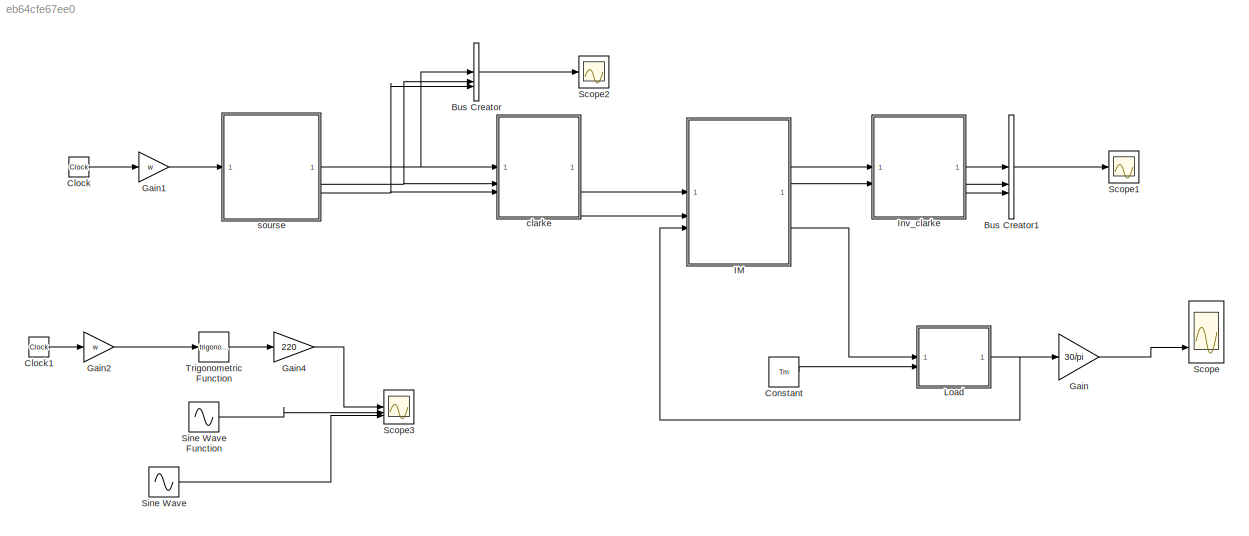
MODEL slx_eb64cfe67ee0
KIND model
CONFIG AbsTol = auto
CONFIG EnableMultiTasking = off
CONFIG FixedStep = auto
CONFIG MaxStep = auto
CONFIG MinStep = auto
CONFIG RelTol = 1e-3
CONFIG SampleTimeConstraint = Unconstrained
CONFIG SolverName = VariableStepAuto
CONFIG StartTime = 0.0
CONFIG StopTime = 10.0
BLOCK [BusCreator] Bus Creator
  DisplayOption = bar
  InheritFromInputs = on
  Inputs = 3
BLOCK [BusCreator] Bus Creator1
  DisplayOption = bar
  InheritFromInputs = on
  Inputs = 3
BLOCK [Clock] Clock
  Decimation = 1
BLOCK [Clock] Clock1
  Decimation = 1
BLOCK [Constant] Constant
  Value = Tm
BLOCK [Gain] Gain
  Gain = 30/pi
BLOCK [Gain] Gain1
  Gain = w
BLOCK [Gain] Gain2
  Gain = w
BLOCK [Gain] Gain4
  Gain = 220
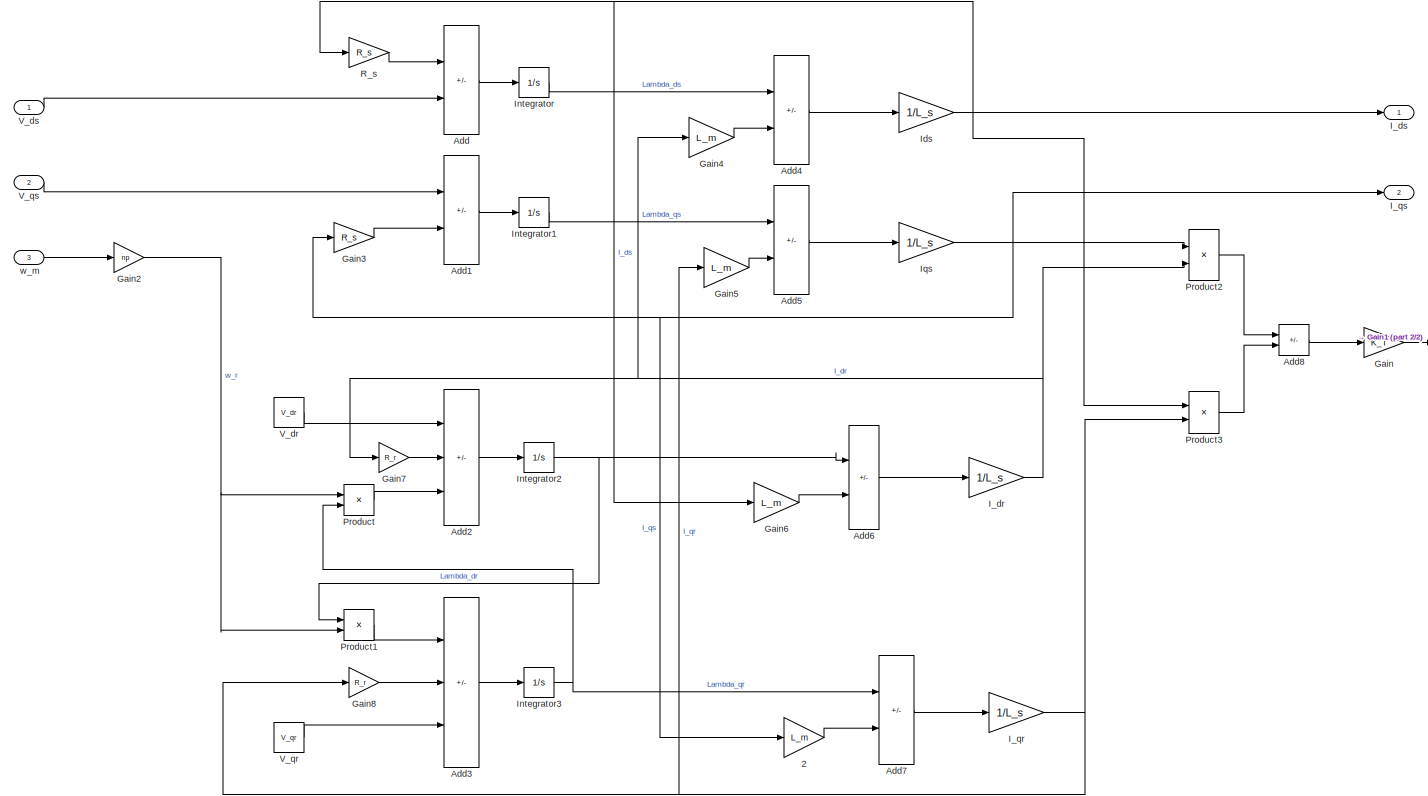
[diagram: IM - part 1/2, most of the canvas]
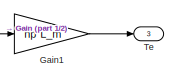
[diagram: IM - part 2/2, middle right region]
BLOCK [SubSystem] IM
BLOCK [Gain] IM/2
  Gain = L_m
BLOCK [Sum] IM/Add
  IconShape = rectangular
  Inputs = -+
BLOCK [Sum] IM/Add1
  IconShape = rectangular
  Inputs = +-
BLOCK [Sum] IM/Add2
  IconShape = rectangular
  Inputs = +-+
BLOCK [Sum] IM/Add3
  IconShape = rectangular
  Inputs = +-+
BLOCK [Sum] IM/Add4
  IconShape = rectangular
  Inputs = +-
BLOCK [Sum] IM/Add5
  IconShape = rectangular
  Inputs = +-
BLOCK [Sum] IM/Add6
  IconShape = rectangular
  Inputs = +-
BLOCK [Sum] IM/Add7
  IconShape = rectangular
  Inputs = +-
BLOCK [Sum] IM/Add8
  IconShape = rectangular
  Inputs = +-
BLOCK [Gain] IM/Gain
  Gain = K_T
BLOCK [Gain] IM/Gain1
  Gain = np*L_m
BLOCK [Gain] IM/Gain2
  Gain = np
BLOCK [Gain] IM/Gain3
  Gain = R_s
BLOCK [Gain] IM/Gain4
  Gain = L_m
BLOCK [Gain] IM/Gain5
  Gain = L_m
BLOCK [Gain] IM/Gain6
  Gain = L_m
BLOCK [Gain] IM/Gain7
  Gain = R_r
BLOCK [Gain] IM/Gain8
  Gain = R_r
BLOCK [Gain] IM/I_dr
  Gain = 1/L_s
BLOCK [Outport] IM/I_ds
BLOCK [Gain] IM/I_qr
  Gain = 1/L_s
BLOCK [Outport] IM/I_qs
  Port = 2
BLOCK [Gain] IM/Ids
  Gain = 1/L_s
BLOCK [Integrator] IM/Integrator
BLOCK [Integrator] IM/Integrator1
BLOCK [Integrator] IM/Integrator2
BLOCK [Integrator] IM/Integrator3
BLOCK [Gain] IM/Iqs
  Gain = 1/L_s
BLOCK [Product] IM/Product
BLOCK [Product] IM/Product1
BLOCK [Product] IM/Product2
BLOCK [Product] IM/Product3
BLOCK [Gain] IM/R_s
  Gain = R_s
BLOCK [Outport] IM/Te
  Port = 3
BLOCK [Constant] IM/V_dr
  Value = V_dr
BLOCK [Inport] IM/V_ds
BLOCK [Constant] IM/V_qr
  Value = V_qr
BLOCK [Inport] IM/V_qs
  Port = 2
BLOCK [Inport] IM/w_m
  Port = 3
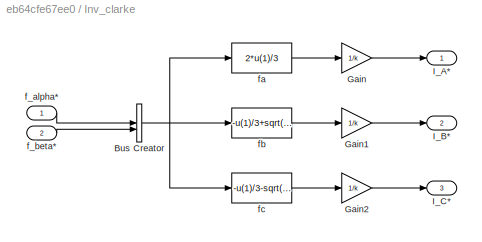
BLOCK [SubSystem] Inv_clarke
BLOCK [BusCreator] Inv_clarke/Bus Creator
  DisplayOption = bar
  InheritFromInputs = on
  Inputs = 2
BLOCK [Gain] Inv_clarke/Gain
  Gain = 1/k
BLOCK [Gain] Inv_clarke/Gain1
  Gain = 1/k
BLOCK [Gain] Inv_clarke/Gain2
  Gain = 1/k
BLOCK [Outport] Inv_clarke/I_A*
BLOCK [Outport] Inv_clarke/I_B*
  Port = 2
BLOCK [Outport] Inv_clarke/I_C*
  Port = 3
BLOCK [Inport] Inv_clarke/f_alpha*
  NameLocation = top
BLOCK [Inport] Inv_clarke/f_beta*
  Port = 2
BLOCK [Fcn] Inv_clarke/fa
  Expr = 2*u(1)/3
BLOCK [Fcn] Inv_clarke/fb
  Expr = -u(1)/3+sqrt(3)*u(2)/3
BLOCK [Fcn] Inv_clarke/fc
  Expr = -u(1)/3-sqrt(3)*u(2)/3
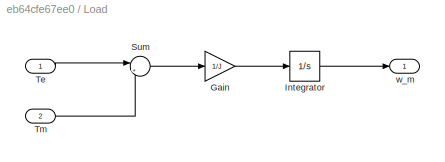
BLOCK [SubSystem] Load
BLOCK [Gain] Load/Gain
  Gain = 1/J
BLOCK [Integrator] Load/Integrator
BLOCK [Sum] Load/Sum
  Inputs = |+-
BLOCK [Inport] Load/Te
BLOCK [Inport] Load/Tm
  Port = 2
BLOCK [Outport] Load/w_m
BLOCK [Scope] Scope
  Floating = off
  NumInputPorts = 3
  ScopeSpecificationString = Simulink.scopes.TimeScopeBlockCfg('CurrentConfiguration', extmgr.ConfigurationSet(extmgr.Configuration('Core','General UI',true),extmgr.Configuration('Core','Source UI',true),extmgr.Configuration('Sources','WiredSimulink',true),extmgr.Configuration('Visuals','Time Domain',true,'SerializedDisplays',{struct('MinYLimReal','-143346.00407','MaxYLimReal','150116.2753','YLabelReal','','MinYLimMag','    0...<+2748ch>
BLOCK [Scope] Scope1
  Floating = off
  NumInputPorts = 1
  ScopeSpecificationString = Simulink.scopes.TimeScopeBlockCfg('CurrentConfiguration', extmgr.ConfigurationSet(extmgr.Configuration('Core','General UI',true),extmgr.Configuration('Core','Source UI',true),extmgr.Configuration('Sources','WiredSimulink',true,'DataLoggingVariableName','ScopeData1'),extmgr.Configuration('Visuals','Time Domain',true,'SerializedDisplays',{struct('MinYLimReal','-185741.13467','MaxYLimReal','238210.23...<+1534ch>
BLOCK [Scope] Scope2
  Floating = off
  NumInputPorts = 1
  ScopeSpecificationString = Simulink.scopes.TimeScopeBlockCfg('CurrentConfiguration', extmgr.ConfigurationSet(extmgr.Configuration('Core','General UI',true),extmgr.Configuration('Core','Source UI',true),extmgr.Configuration('Sources','WiredSimulink',true,'DataLoggingVariableName','ScopeData2'),extmgr.Configuration('Visuals','Time Domain',true,'SerializedDisplays',{struct('MinYLimReal','-224.53627','MaxYLimReal','224.53652','...<+1534ch>
BLOCK [Scope] Scope3
  Floating = off
  NumInputPorts = 3
  ScopeSpecificationString = Simulink.scopes.TimeScopeBlockCfg('CurrentConfiguration', extmgr.ConfigurationSet(extmgr.Configuration('Core','General UI',true),extmgr.Configuration('Core','Source UI',true),extmgr.Configuration('Sources','WiredSimulink',true,'DataLoggingVariableName','ScopeData1'),extmgr.Configuration('Visuals','Time Domain',true,'SerializedDisplays',{struct('MinYLimReal','-392.69908','MaxYLimReal','3534.29174',...<+2912ch>
BLOCK [Sin] Sine Wave
  Amplitude = 220
  Frequency = 2*pi*50
  SampleTime = 0.00001
BLOCK [Sin] Sine Wave Function
  Amplitude = 220
  Frequency = 2*pi*50
  SampleTime = 0.0001
BLOCK [Trigonometry] Trigonometric Function
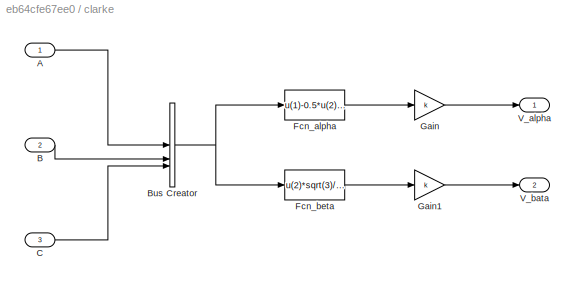
BLOCK [SubSystem] clarke
BLOCK [Inport] clarke/A
BLOCK [Inport] clarke/B
  Port = 2
BLOCK [BusCreator] clarke/Bus Creator
  DisplayOption = bar
  InheritFromInputs = on
  Inputs = 3
BLOCK [Inport] clarke/C
  Port = 3
BLOCK [Fcn] clarke/Fcn_alpha
  Expr = u(1)-0.5*u(2)-0.5*u(3)
BLOCK [Fcn] clarke/Fcn_beta
  Expr = u(2)*sqrt(3)/2-u(3)*sqrt(3)/2
BLOCK [Gain] clarke/Gain
  Gain = k
BLOCK [Gain] clarke/Gain1
  Gain = k
BLOCK [Outport] clarke/V_alpha
BLOCK [Outport] clarke/V_bata
  Port = 2
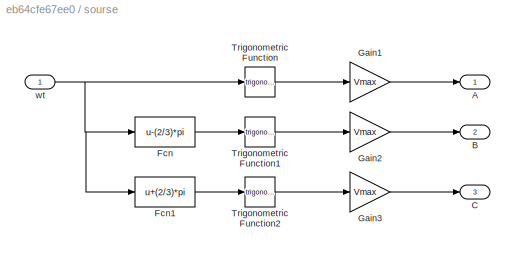
BLOCK [SubSystem] sourse
BLOCK [Outport] sourse/A
BLOCK [Outport] sourse/B
  Port = 2
BLOCK [Outport] sourse/C
  Port = 3
BLOCK [Fcn] sourse/Fcn
  Expr = u-(2/3)*pi
BLOCK [Fcn] sourse/Fcn1
  Expr = u+(2/3)*pi
BLOCK [Gain] sourse/Gain1
  Gain = Vmax
BLOCK [Gain] sourse/Gain2
  Gain = Vmax
BLOCK [Gain] sourse/Gain3
  Gain = Vmax
BLOCK [Trigonometry] sourse/Trigonometric Function
BLOCK [Trigonometry] sourse/Trigonometric Function1
BLOCK [Trigonometry] sourse/Trigonometric Function2
BLOCK [Inport] sourse/wt
LINE Bus Creator1:1 -> Scope1:1
LINE Bus Creator:1 -> Scope2:1
LINE Clock1:1 -> Gain2:1
LINE Clock:1 -> Gain1:1
LINE Constant:1 -> Load:2
LINE Gain1:1 -> sourse:1
LINE Gain2:1 -> Trigonometric Function:1
LINE Gain4:1 -> Scope3:1
LINE Gain:1 -> Scope:3
LINE IM/2:1 -> IM/Add7:2
LINE IM/Add1:1 -> IM/Integrator1:1
LINE IM/Add2:1 -> IM/Integrator2:1
LINE IM/Add3:1 -> IM/Integrator3:1
LINE IM/Add4:1 -> IM/Ids:1
LINE IM/Add5:1 -> IM/Iqs:1
LINE IM/Add6:1 -> IM/I_dr:1
LINE IM/Add7:1 -> IM/I_qr:1
LINE IM/Add8:1 -> IM/Gain:1
LINE IM/Add:1 -> IM/Integrator:1
LINE IM/Gain1:1 -> IM/Te:1
NET IM/Gain2:1 -> IM/Product1:2, IM/Product:1
LINE IM/Gain3:1 -> IM/Add1:2
LINE IM/Gain4:1 -> IM/Add4:2
LINE IM/Gain5:1 -> IM/Add5:2
LINE IM/Gain6:1 -> IM/Add6:2
LINE IM/Gain7:1 -> IM/Add2:2
LINE IM/Gain8:1 -> IM/Add3:2
LINE IM/Gain:1 -> IM/Gain1:1
NET IM/I_dr:1 -> IM/Gain4:1, IM/Gain7:1, IM/Product2:2
NET IM/I_qr:1 -> IM/Gain5:1, IM/Gain8:1, IM/Product3:2
NET IM/Ids:1 -> IM/Gain6:1, IM/I_ds:1, IM/Product3:1, IM/R_s:1
LINE IM/Integrator1:1 -> IM/Add5:1
NET IM/Integrator2:1 -> IM/Add6:1, IM/Product1:1
NET IM/Integrator3:1 -> IM/Add7:1, IM/Product:2
LINE IM/Integrator:1 -> IM/Add4:1
NET IM/Iqs:1 -> IM/2:1, IM/Gain3:1, IM/I_qs:1, IM/Product2:1
LINE IM/Product1:1 -> IM/Add3:1
LINE IM/Product2:1 -> IM/Add8:1
LINE IM/Product3:1 -> IM/Add8:2
LINE IM/Product:1 -> IM/Add2:3
LINE IM/R_s:1 -> IM/Add:1
LINE IM/V_dr:1 -> IM/Add2:1
LINE IM/V_ds:1 -> IM/Add:2
LINE IM/V_qr:1 -> IM/Add3:3
LINE IM/V_qs:1 -> IM/Add1:1
LINE IM/w_m:1 -> IM/Gain2:1
LINE IM:1 -> Inv_clarke:1
LINE IM:2 -> Inv_clarke:2
LINE IM:3 -> Load:1
NET Inv_clarke/Bus Creator:1 -> Inv_clarke/fa:1, Inv_clarke/fb:1, Inv_clarke/fc:1
LINE Inv_clarke/Gain1:1 -> Inv_clarke/I_B*:1
LINE Inv_clarke/Gain2:1 -> Inv_clarke/I_C*:1
LINE Inv_clarke/Gain:1 -> Inv_clarke/I_A*:1
LINE Inv_clarke/f_alpha*:1 -> Inv_clarke/Bus Creator:1
LINE Inv_clarke/f_beta*:1 -> Inv_clarke/Bus Creator:2
LINE Inv_clarke/fa:1 -> Inv_clarke/Gain:1
LINE Inv_clarke/fb:1 -> Inv_clarke/Gain1:1
LINE Inv_clarke/fc:1 -> Inv_clarke/Gain2:1
LINE Inv_clarke:1 -> Bus Creator1:1
LINE Inv_clarke:2 -> Bus Creator1:2
LINE Inv_clarke:3 -> Bus Creator1:3
LINE Load/Gain:1 -> Load/Integrator:1
LINE Load/Integrator:1 -> Load/w_m:1
LINE Load/Sum:1 -> Load/Gain:1
LINE Load/Te:1 -> Load/Sum:1
LINE Load/Tm:1 -> Load/Sum:2
NET Load:1 -> Gain:1, IM:3
LINE Sine Wave Function:1 -> Scope3:2
LINE Sine Wave:1 -> Scope3:3
LINE Trigonometric Function:1 -> Gain4:1
LINE clarke/A:1 -> clarke/Bus Creator:1
LINE clarke/B:1 -> clarke/Bus Creator:2
NET clarke/Bus Creator:1 -> clarke/Fcn_alpha:1, clarke/Fcn_beta:1
LINE clarke/C:1 -> clarke/Bus Creator:3
LINE clarke/Fcn_alpha:1 -> clarke/Gain:1
LINE clarke/Fcn_beta:1 -> clarke/Gain1:1
LINE clarke/Gain1:1 -> clarke/V_bata:1
LINE clarke/Gain:1 -> clarke/V_alpha:1
LINE clarke:1 -> IM:1
LINE clarke:2 -> IM:2
LINE sourse/Fcn1:1 -> sourse/Trigonometric Function2:1
LINE sourse/Fcn:1 -> sourse/Trigonometric Function1:1
LINE sourse/Gain1:1 -> sourse/A:1
LINE sourse/Gain2:1 -> sourse/B:1
LINE sourse/Gain3:1 -> sourse/C:1
LINE sourse/Trigonometric Function1:1 -> sourse/Gain2:1
LINE sourse/Trigonometric Function2:1 -> sourse/Gain3:1
LINE sourse/Trigonometric Function:1 -> sourse/Gain1:1
NET sourse/wt:1 -> sourse/Fcn1:1, sourse/Fcn:1, sourse/Trigonometric Function:1
NET sourse:1 -> Bus Creator:1, clarke:1
NET sourse:2 -> Bus Creator:2, clarke:2
NET sourse:3 -> Bus Creator:3, clarke:3
note: NET lines group one-source signal fan-out (src -> all destinations, sorted); 1:1 wires keep LINE
